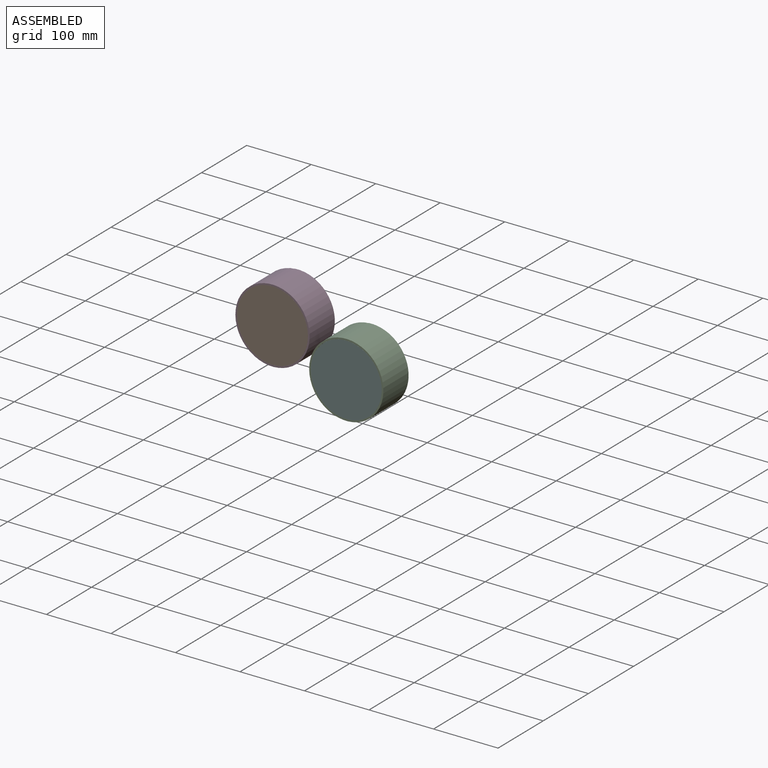
[diagram: assembled view]
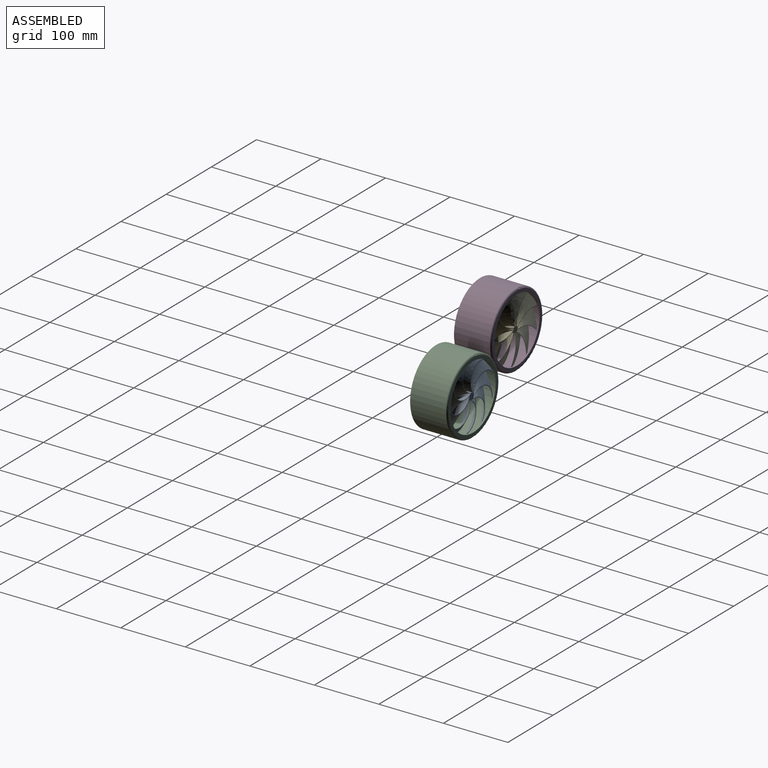
[diagram: assembled view, second angle]
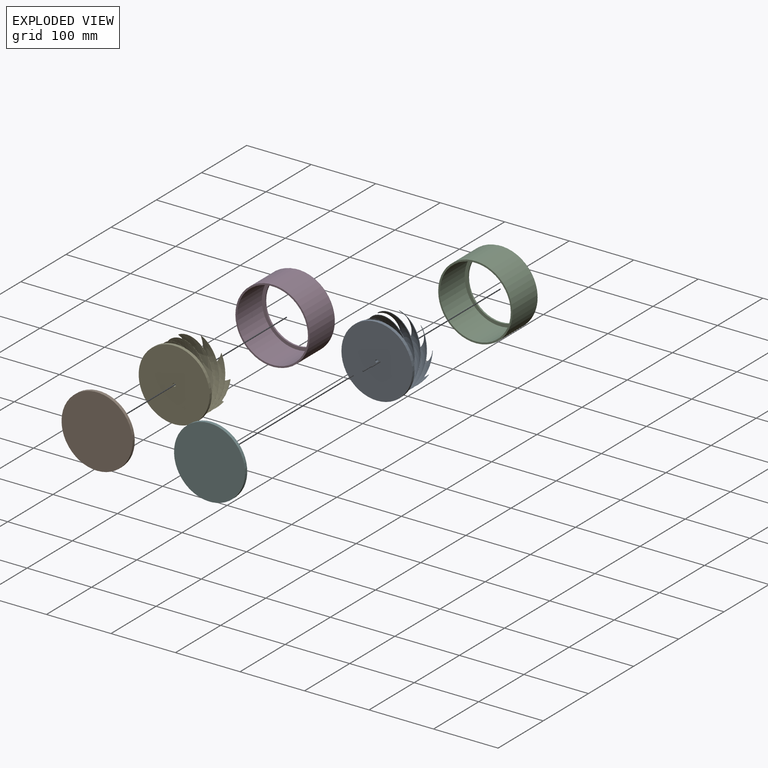
[diagram: exploded view]
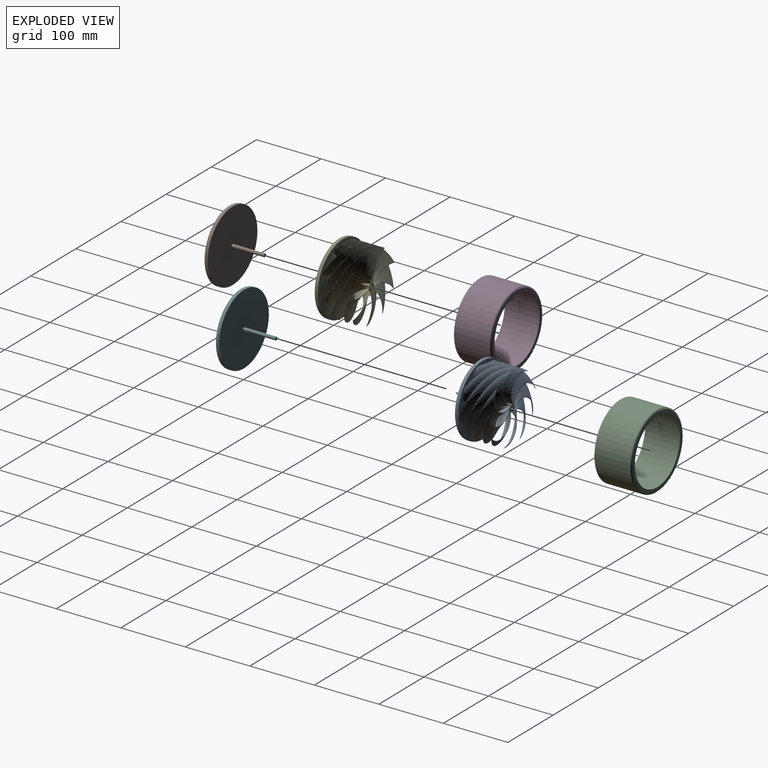
[diagram: exploded view, second angle]
ASSEMBLY  parts=6 mates=4
PART A: 37 faces, bbox 119.1x55.3x119.1 mm
  f0: bspline ~99.28x83.03mm, area 3552.4mm2, adj f2,f29,f31,f36
  f1: bspline ~101.42x85.17mm, area 3705.7mm2, adj f2,f29,f31,f32
  f2: bspline ~79.34x65.26mm, area 114.4mm2, adj f0,f1,f29,f31
  f3: bspline ~105.71x82.2mm, area 3555.4mm2, adj f5,f29,f31,f35
  f4: bspline ~108.21x84.37mm, area 3704.3mm2, adj f5,f29,f31,f36
  f5: bspline ~96.85x45mm, area 114.4mm2, adj f3,f4,f29,f31
  f6: bspline ~102.77x74.9mm, area 3553.6mm2, adj f8,f29,f31,f34
  f7: bspline ~105.41x77.14mm, area 3695mm2, adj f8,f29,f31,f35
  f8: bspline ~73.88x71.1mm, area 114.4mm2, adj f6,f7,f29,f31
  f9: bspline ~101.1x85.06mm, area 3550.8mm2, adj f11,f29,f31,f33
  f10: bspline ~103.77x87.86mm, area 3705.7mm2, adj f11,f29,f31,f34
  f11: bspline ~96.34x45mm, area 114.4mm2, adj f9,f10,f29,f31
  f12: bspline ~105.63x66.49mm, area 3550.8mm2, adj f14,f29,f31
  f13: bspline ~107.61x67.79mm, area 3705.7mm2, adj f14,f29,f31
  f14: bspline ~81.89x62.3mm, area 114.4mm2, adj f12,f13,f29,f31
  f15: bspline ~96.83x88.75mm, area 3550.8mm2, adj f17,f29,f31
  f16: bspline ~99.2x91.69mm, area 3705.7mm2, adj f17,f29,f31
  f17: bspline ~92.9x48.34mm, area 114.4mm2, adj f15,f16,f29,f31
  f18: bspline ~107.02x72.52mm, area 3550.8mm2, adj f20,f29,f31
  f19: bspline ~109.3x73.84mm, area 3705.7mm2, adj f20,f29,f31
  f20: bspline ~89.26x53.33mm, area 114.4mm2, adj f18,f19,f29,f31
  f21: bspline ~95.34x92.58mm, area 3705.7mm2, adj f22,f29,f31
  f22: bspline ~87.41x57.18mm, area 114.4mm2, adj f21,f23,f29,f31
  f23: bspline ~93.48x90.07mm, area 3550.8mm2, adj f22,f29,f31
  f24: bspline ~109.36x78.32mm, area 3705.7mm2, adj f25,f29,f31
  f25: bspline ~94.42x45.07mm, area 114.4mm2, adj f24,f26,f29,f31
  f26: bspline ~107.11x76.85mm, area 3550.8mm2, adj f25,f29,f31
  f27: plane 110x110mm, normal (0,-1,0), area 9483.7mm2, adj f28,f30
  f28: cylinder r=55mm len=110mm, axis (0,-1,0), area 1727.9mm2, adj f27,f31
  f29: plane 103.4x102.06mm, normal (0,1,0), area 586.4mm2, adj f0,f1,f2,f3,f4,f5,f6,f7
  f30: cylinder r=2.5mm len=50mm, axis (0,-1,0), area 785.4mm2, adj f27,f29
  f31: torus R=55mm, axis (0,-1,0), area 10213.6mm2, adj f0,f1,f2,f3,f4,f5,f6,f7
  f32: torus R=55mm, axis (0,-1,0), area 2.2mm2, adj f1,f29,f31
  f33: torus R=55mm, axis (0,-1,0), area 40.2mm2, adj f9,f31
  f34: torus R=55mm, axis (0,-1,0), area 195.3mm2, adj f6,f10,f29,f31
  f35: torus R=55mm, axis (0,-1,0), area 67.7mm2, adj f3,f7,f29,f31
  f36: torus R=55mm, axis (0,-1,0), area 22.3mm2, adj f0,f4,f29,f31
PART B: 5 faces, bbox 110x55x110 mm
  f0: cylinder r=55mm len=110mm, axis (0,1,0), area 1727.9mm2, adj f1,f2
  f1: plane 110x110mm, normal (0,-1,0), area 9483.7mm2, adj f0,f3
  f2: plane 110x110mm, normal (0,1,0), area 9503.3mm2, adj f0
  f3: cylinder r=2.5mm len=50mm, axis (0,1,0), area 785.4mm2, adj f1,f4
  f4: plane 5x5mm, normal (0,-1,0), area 19.6mm2, adj f3
PART C: 7 faces, bbox 124.5x124.5x57.5 mm
  f0: plane 110x110mm, normal (0,0,1), area 1649.3mm2, adj f1,f6
  f1: cylinder r=50mm len=100mm, axis (0,0,-1), area 785.4mm2, adj f0,f2
  f2: plane 110x110mm, normal (0,0,-1), area 1649.3mm2, adj f1,f3
  f3: cylinder r=55mm len=110mm, axis (0,0,-1), area 19006.6mm2, adj f2,f4
  f4: plane 115x115mm, normal (0,0,-1), area 883.6mm2, adj f3,f5
  f5: cylinder r=57.5mm len=115mm, axis (0,0,-1), area 19870.6mm2, adj f4,f6
  f6: torus R=55mm, axis (0,0,-1), area 1396.3mm2, adj f0,f5
PART D: same geometry as C
PART E: 36 faces, bbox 119.5x55.7x119.5 mm
  f0: bspline ~93.47x47.88mm, area 32.7mm2, adj f1,f2,f29,f31
  f1: bspline ~93.01x52.78mm, area 3292.7mm2, adj f0,f29,f31
  f2: bspline ~93.39x52.16mm, area 3294.5mm2, adj f0,f29,f31
  f3: bspline ~89.27x54.44mm, area 32.7mm2, adj f4,f5,f29,f31
  f4: bspline ~89.14x62.08mm, area 3292.8mm2, adj f3,f29,f31
  f5: bspline ~88.42x59.85mm, area 3294.5mm2, adj f3,f29,f31,f32
  f6: bspline ~88.09x56.76mm, area 32.7mm2, adj f7,f8,f29,f31
  f7: bspline ~87.54x56.76mm, area 3292.7mm2, adj f6,f29,f31,f32
  f8: bspline ~87.99x55.94mm, area 3294.5mm2, adj f6,f29,f31,f33
  f9: bspline ~94.44x45.99mm, area 32.7mm2, adj f10,f11,f29,f31
  f10: bspline ~94.33x59mm, area 3287.8mm2, adj f9,f29,f31,f33
  f11: bspline ~94x59.54mm, area 3290.6mm2, adj f9,f29,f31,f34
  f12: bspline ~81.16x66.2mm, area 32.7mm2, adj f13,f14,f29,f31
  f13: bspline ~81.16x65.49mm, area 3294.5mm2, adj f12,f29,f31,f35
  f14: bspline ~80.51x66.17mm, area 3292.8mm2, adj f12,f29,f31,f34
  f15: bspline ~97.06x45mm, area 32.7mm2, adj f16,f17,f29,f31
  f16: bspline ~96.83x54.79mm, area 3292.7mm2, adj f15,f29,f31
  f17: bspline ~96.74x55.44mm, area 3294.5mm2, adj f15,f29,f31
  f18: bspline ~74.11x72.25mm, area 32.7mm2, adj f19,f20,f29,f31
  f19: bspline ~74.35x74.11mm, area 3292.7mm2, adj f18,f29,f31
  f20: bspline ~74.76x73.31mm, area 3294.5mm2, adj f18,f29,f31
  f21: bspline ~96.73x45mm, area 32.7mm2, adj f22,f23,f29,f31
  f22: bspline ~96.38x51.97mm, area 3292.7mm2, adj f21,f29,f31
  f23: bspline ~96.53x51.74mm, area 3294.5mm2, adj f21,f29,f31
  f24: bspline ~82.89x64.26mm, area 32.7mm2, adj f25,f26,f29,f31
  f25: bspline ~82.89x69.27mm, area 3292.7mm2, adj f24,f29,f31
  f26: bspline ~81.25x65.6mm, area 3294.5mm2, adj f24,f29,f31
  f27: plane 110x110mm, normal (0,-1,0), area 9483.7mm2, adj f28,f30
  f28: cylinder r=55mm len=110mm, axis (0,-1,0), area 1727.9mm2, adj f27,f31
  f29: plane 103.77x103.33mm, normal (0,1,0), area 339.6mm2, adj f0,f1,f2,f3,f4,f5,f6,f7
  f30: cylinder r=2.5mm len=50mm, axis (0,-1,0), area 785.4mm2, adj f27,f29
  f31: torus R=55mm, axis (0,-1,0), area 10402.4mm2, adj f0,f1,f2,f3,f4,f5,f6,f7
  f32: torus R=55mm, axis (0,-1,0), area 303.6mm2, adj f5,f7,f29,f31
  f33: torus R=55mm, axis (0,-1,0), area 94.5mm2, adj f8,f10,f29,f31
  f34: torus R=55mm, axis (0,-1,0), area 28mm2, adj f11,f14,f29,f31
  f35: torus R=55mm, axis (0,-1,0), area 0.5mm2, adj f13,f29,f31
PART F: same geometry as B
PLACE A rot(axis=(0,1,0),90deg) t=(83.61,-7.88,-55.37)mm
PLACE B rot(axis=(0,0,1),180deg) t=(-25.06,-20.97,-5.3)mm fixed
PLACE C rot(axis=(-1,0,0),90deg) t=(83.61,-12.88,-55.37)mm
PLACE D rot(axis=(-1,0,0),90deg) t=(-25.06,-20.97,-5.3)mm
PLACE E rot(axis=(0,-1,0),159.4deg) t=(-25.06,-15.97,-5.3)mm
PLACE F rot(axis=(1,0,0),180deg) t=(83.61,-12.88,-55.37)mm fixed
MATE revolute F.f3 <-> A.f28  axis (0,-1,0) through (83.61,42.12,-55.37)mm
MATE revolute B.f3 <-> E.f28  axis (0,1,0) through (-25.06,34.03,-5.3)mm
MATE fastened C.f1 <-> F.f0  axis (0,-1,0) through (83.61,-12.88,-55.37)mm
MATE fastened D.f1 <-> B.f0  axis (0,-1,0) through (-25.06,-20.97,-5.3)mm
